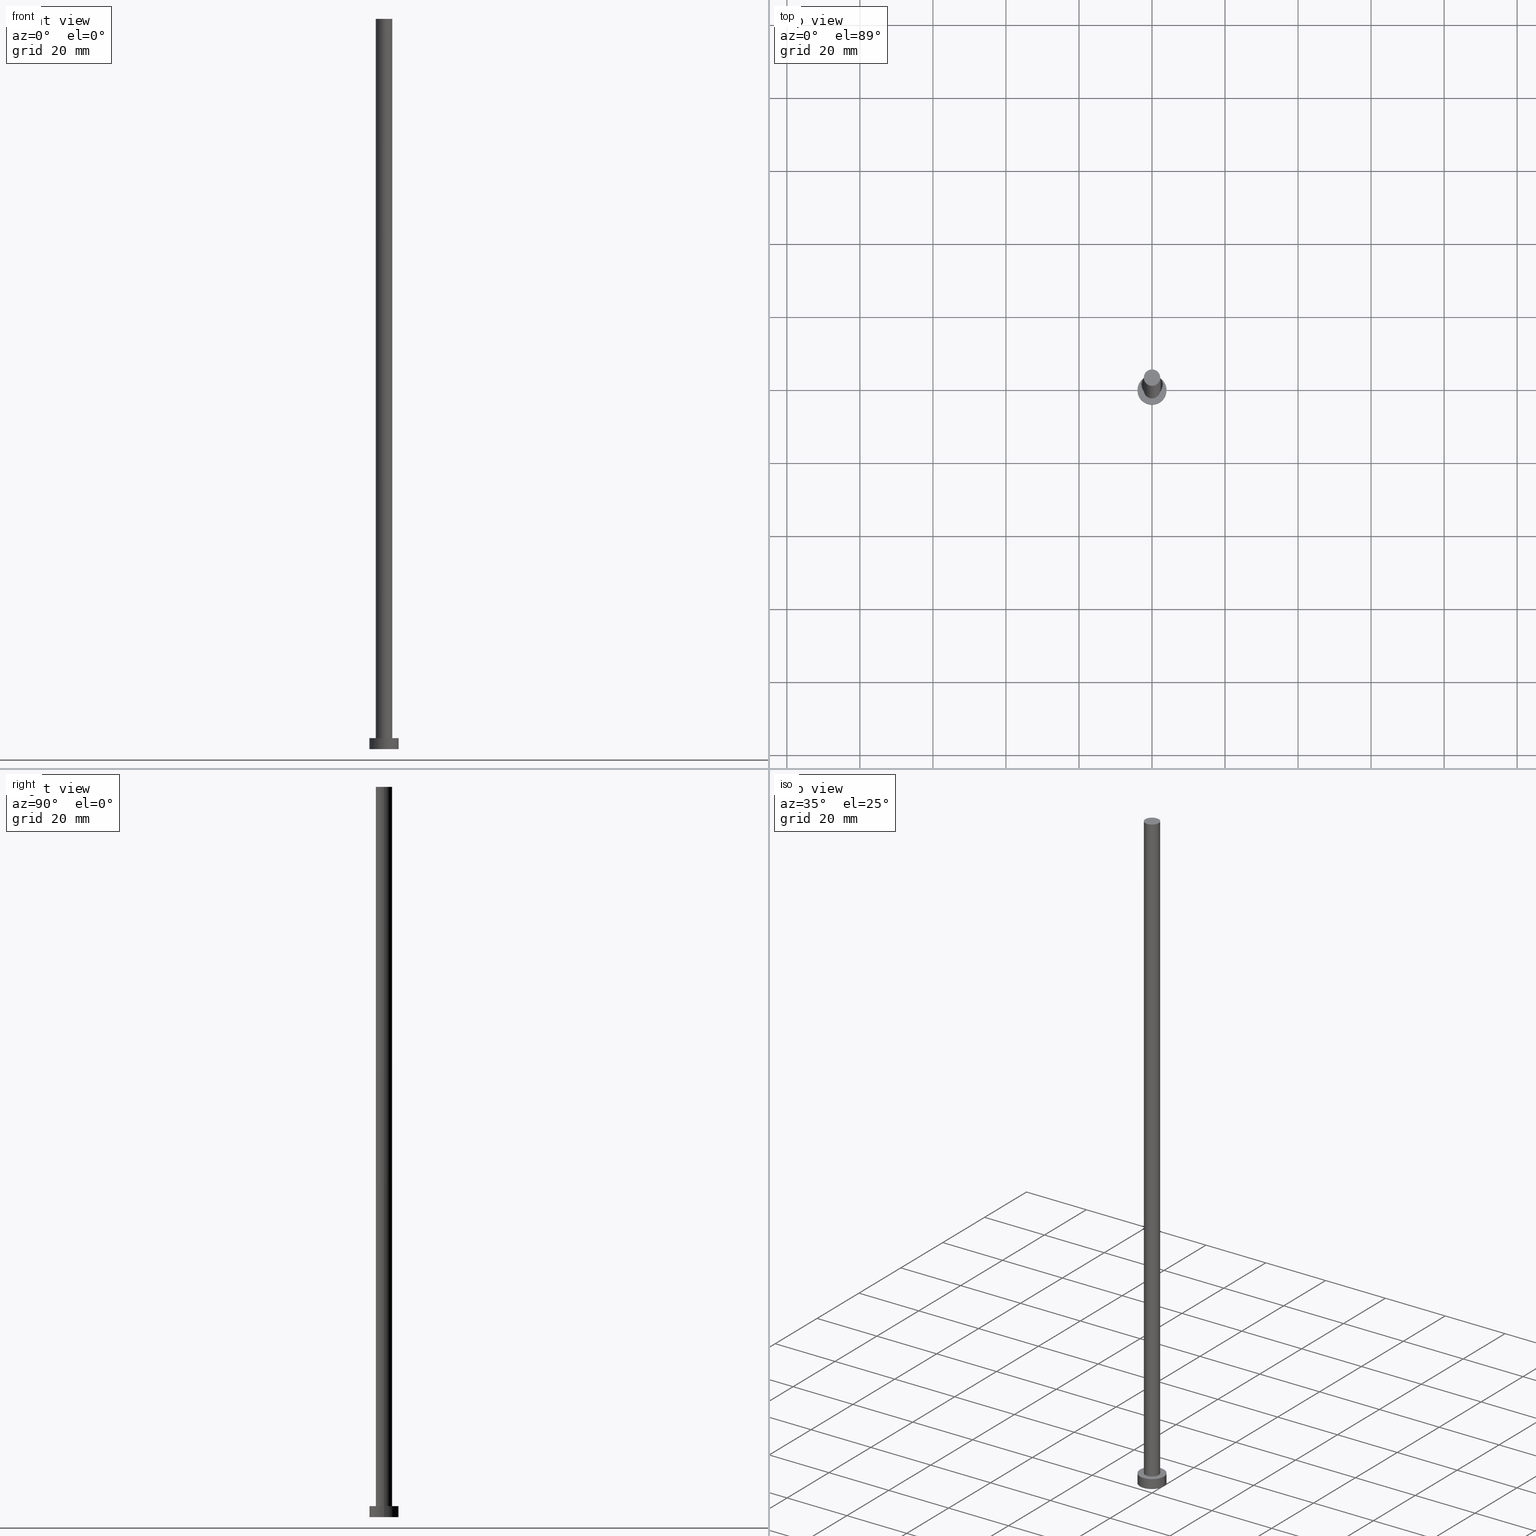
[diagram: canonical four-view strip — front | top / right | iso, engineering-drawing reading convention]
A machine part, canonical four-view strip (front | top / right | iso — engineering-drawing reading convention). The complete STEP part file that produces these views, byte-faithful:
ISO-10303-21;
HEADER;
FILE_DESCRIPTION (( 'STEP AP203' ),
    '1' );
FILE_NAME ('0418.STEP',
    '2023-02-13T15:04:25',
    ( '' ),
    ( '' ),
    'SwSTEP 2.0',
    'SolidWorks 2019',
    '' );
FILE_SCHEMA (( 'CONFIG_CONTROL_DESIGN' ));
ENDSEC;

DATA;
#1 = DIRECTION ( 'NONE',  ( 1.000000000000000000, 0.000000000000000000, 0.000000000000000000 ) ) ;
#2 = DIRECTION ( 'NONE',  ( -0.000000000000000000, -0.000000000000000000, -1.000000000000000000 ) ) ;
#3 = DIRECTION ( 'NONE',  ( -0.000000000000000000, -0.000000000000000000, -1.000000000000000000 ) ) ;
#4 = ORIENTED_EDGE ( 'NONE', *, *, #206, .F. ) ;
#5 = DIRECTION ( 'NONE',  ( 1.000000000000000000, 0.000000000000000000, 0.000000000000000000 ) ) ;
#6 = DIRECTION ( 'NONE',  ( -1.000000000000000000, 0.000000000000000000, 0.000000000000000000 ) ) ;
#7 = DIRECTION ( 'NONE',  ( -0.000000000000000000, -0.000000000000000000, -1.000000000000000000 ) ) ;
#8 = DIRECTION ( 'NONE',  ( 1.000000000000000000, 0.000000000000000000, 0.000000000000000000 ) ) ;
#9 = DIRECTION ( 'NONE',  ( -0.000000000000000000, -0.000000000000000000, -1.000000000000000000 ) ) ;
#10 = DIRECTION ( 'NONE',  ( 1.000000000000000000, 0.000000000000000000, 0.000000000000000000 ) ) ;
#11 = ORIENTED_EDGE ( 'NONE', *, *, #53, .F. ) ;
#12 = AXIS2_PLACEMENT_3D ( 'NONE', #104, #250, #204 ) ;
#13 = PERSON_AND_ORGANIZATION ( #96, #105 ) ;
#14 = EDGE_CURVE ( 'NONE', #249, #24, #155, .T. ) ;
#15 = VECTOR ( 'NONE', #2, 1000.000000000000000 ) ;
#16 = CIRCLE ( 'NONE', #52, 4.000000000000000000 ) ;
#17 = ORIENTED_EDGE ( 'NONE', *, *, #178, .T. ) ;
#18 = ORIENTED_EDGE ( 'NONE', *, *, #14, .F. ) ;
#19 = CARTESIAN_POINT ( 'NONE',  ( -2.250000000000000000, 0.000000000000000000, 200.0000000000000000 ) ) ;
#20 = APPROVAL ( #98, 'NEUR�EN�' ) ;
#21 = DIRECTION ( 'NONE',  ( 0.000000000000000000, 0.000000000000000000, 1.000000000000000000 ) ) ;
#22 = DIRECTION ( 'NONE',  ( -0.000000000000000000, -0.000000000000000000, -1.000000000000000000 ) ) ;
#23 = AXIS2_PLACEMENT_3D ( 'NONE', #222, #43, #126 ) ;
#24 = VERTEX_POINT ( 'NONE', #70 ) ;
#25 = ADVANCED_FACE ( 'NONE', ( #110, #201 ), #108, .T. ) ;
#26 = CIRCLE ( 'NONE', #187, 4.000000000000000000 ) ;
#27 = LOCAL_TIME ( 16, 4, 25.00000000000000000, #136 ) ;
#28 = APPLICATION_CONTEXT ( 'configuration controlled 3d designs of mechanical parts and assemblies' ) ;
#29 = MECHANICAL_CONTEXT ( 'NONE', #28, 'mechanical' ) ;
#30 = COORDINATED_UNIVERSAL_TIME_OFFSET ( 1, 0, .AHEAD. ) ;
#31 = EDGE_CURVE ( 'NONE', #77, #139, #210, .T. ) ;
#32 = ADVANCED_BREP_SHAPE_REPRESENTATION ( '0418', ( #168, #90 ), #228 ) ;
#33 = CALENDAR_DATE ( 2023, 13, 2 ) ;
#34 = EDGE_LOOP ( 'NONE', ( #158, #146 ) ) ;
#35 = ORIENTED_EDGE ( 'NONE', *, *, #65, .F. ) ;
#36 = PRODUCT ( '0418', '0418', '', ( #29 ) ) ;
#37 = AXIS2_PLACEMENT_3D ( 'NONE', #41, #86, #124 ) ;
#38 = CARTESIAN_POINT ( 'NONE',  ( -4.000000000000000000, 0.000000000000000000, 3.000000000000000000 ) ) ;
#39 = LINE ( 'NONE', #100, #138 ) ;
#40 = EDGE_LOOP ( 'NONE', ( #106, #156, #180, #137 ) ) ;
#41 = CARTESIAN_POINT ( 'NONE',  ( 0.000000000000000000, 0.000000000000000000, 200.0000000000000000 ) ) ;
#42 = CARTESIAN_POINT ( 'NONE',  ( -2.250000000000000000, 0.000000000000000000, 200.0000000000000000 ) ) ;
#43 = DIRECTION ( 'NONE',  ( 0.000000000000000000, 0.000000000000000000, 1.000000000000000000 ) ) ;
#44 = EDGE_LOOP ( 'NONE', ( #160, #58, #166, #35 ) ) ;
#45 = AXIS2_PLACEMENT_3D ( 'NONE', #194, #21, #142 ) ;
#46 = DIRECTION ( 'NONE',  ( 1.000000000000000000, 0.000000000000000000, 0.000000000000000000 ) ) ;
#47 = APPROVAL_DATE_TIME ( #49, #20 ) ;
#48 = DATE_AND_TIME ( #74, #122 ) ;
#49 = DATE_AND_TIME ( #169, #87 ) ;
#50 = PERSON_AND_ORGANIZATION ( #96, #105 ) ;
#51 = PERSON_AND_ORGANIZATION ( #96, #105 ) ;
#52 = AXIS2_PLACEMENT_3D ( 'NONE', #56, #115, #5 ) ;
#53 = EDGE_CURVE ( 'NONE', #242, #116, #252, .T. ) ;
#54 = PERSON_AND_ORGANIZATION ( #96, #105 ) ;
#55 = DATE_TIME_ROLE ( 'creation_date' ) ;
#56 = CARTESIAN_POINT ( 'NONE',  ( 0.000000000000000000, 0.000000000000000000, 0.000000000000000000 ) ) ;
#57 = ORIENTED_EDGE ( 'NONE', *, *, #53, .T. ) ;
#58 = ORIENTED_EDGE ( 'NONE', *, *, #181, .T. ) ;
#59 = AXIS2_PLACEMENT_3D ( 'NONE', #91, #248, #10 ) ;
#60 = ADVANCED_FACE ( 'NONE', ( #230 ), #205, .T. ) ;
#61 = ORIENTED_EDGE ( 'NONE', *, *, #31, .T. ) ;
#62 = DATE_TIME_ROLE ( 'classification_date' ) ;
#63 = DIRECTION ( 'NONE',  ( -0.000000000000000000, -0.000000000000000000, -1.000000000000000000 ) ) ;
#64 = VERTEX_POINT ( 'NONE', #177 ) ;
#65 = EDGE_CURVE ( 'NONE', #139, #24, #94, .T. ) ;
#66 = AXIS2_PLACEMENT_3D ( 'NONE', #82, #7, #159 ) ;
#67 = CARTESIAN_POINT ( 'NONE',  ( 0.000000000000000000, 0.000000000000000000, 200.0000000000000000 ) ) ;
#68 = DIRECTION ( 'NONE',  ( 1.000000000000000000, 0.000000000000000000, 0.000000000000000000 ) ) ;
#69 = CLOSED_SHELL ( 'NONE', ( #163, #114, #107, #25, #193, #198, #60 ) ) ;
#70 = CARTESIAN_POINT ( 'NONE',  ( -2.250000000000000000, 0.000000000000000000, 3.000000000000000000 ) ) ;
#71 = PERSON_AND_ORGANIZATION_ROLE ( 'design_supplier' ) ;
#72 = CC_DESIGN_PERSON_AND_ORGANIZATION_ASSIGNMENT ( #50, #111, ( #145 ) ) ;
#73 = CC_DESIGN_APPROVAL ( #144, ( #145 ) ) ;
#74 = CALENDAR_DATE ( 2023, 13, 2 ) ;
#75 = APPROVAL_STATUS ( 'not_yet_approved' ) ;
#76 = ORIENTED_EDGE ( 'NONE', *, *, #225, .F. ) ;
#77 = VERTEX_POINT ( 'NONE', #238 ) ;
#78 = DIRECTION ( 'NONE',  ( -1.000000000000000000, 0.000000000000000000, 0.000000000000000000 ) ) ;
#79 = ORIENTED_EDGE ( 'NONE', *, *, #83, .F. ) ;
#80 = AXIS2_PLACEMENT_3D ( 'NONE', #143, #63, #6 ) ;
#81 = CC_DESIGN_SECURITY_CLASSIFICATION ( #176, ( #145 ) ) ;
#82 = CARTESIAN_POINT ( 'NONE',  ( 0.000000000000000000, 0.000000000000000000, 200.0000000000000000 ) ) ;
#83 = EDGE_CURVE ( 'NONE', #64, #116, #216, .T. ) ;
#84 = CARTESIAN_POINT ( 'NONE',  ( 0.000000000000000000, 0.000000000000000000, 3.000000000000000000 ) ) ;
#85 = CARTESIAN_POINT ( 'NONE',  ( 0.000000000000000000, 0.000000000000000000, 3.000000000000000000 ) ) ;
#86 = DIRECTION ( 'NONE',  ( 0.000000000000000000, 0.000000000000000000, 1.000000000000000000 ) ) ;
#87 = LOCAL_TIME ( 16, 4, 25.00000000000000000, #148 ) ;
#88 = APPROVAL ( #75, 'NEUR�EN�' ) ;
#89 = ORIENTED_EDGE ( 'NONE', *, *, #173, .F. ) ;
#90 = AXIS2_PLACEMENT_3D ( 'NONE', #172, #135, #1 ) ;
#91 = CARTESIAN_POINT ( 'NONE',  ( 0.000000000000000000, 0.000000000000000000, 3.000000000000000000 ) ) ;
#92 = VECTOR ( 'NONE', #22, 1000.000000000000000 ) ;
#93 = CARTESIAN_POINT ( 'NONE',  ( 0.000000000000000000, 0.000000000000000000, 3.000000000000000000 ) ) ;
#94 = LINE ( 'NONE', #19, #15 ) ;
#95 =( NAMED_UNIT ( * ) PLANE_ANGLE_UNIT ( ) SI_UNIT ( $, .RADIAN. ) );
#96 = PERSON ( 'NEUR�EN�', 'NEUR�EN�', 'NEUR�EN�', ('NEUR�EN�'), ('NEUR�EN�'), ('NEUR�EN�') ) ;
#97 = FACE_OUTER_BOUND ( 'NONE', #191, .T. ) ;
#98 = APPROVAL_STATUS ( 'not_yet_approved' ) ;
#99 = CC_DESIGN_APPROVAL ( #20, ( #176 ) ) ;
#100 = CARTESIAN_POINT ( 'NONE',  ( 2.250000000000000000, 2.755455298081544285E-16, 200.0000000000000000 ) ) ;
#101 = PRODUCT_RELATED_PRODUCT_CATEGORY ( 'detail', '', ( #36 ) ) ;
#102 = PRODUCT_DEFINITION ( 'NEZN�M�', '', #145, #224 ) ;
#103 = AXIS2_PLACEMENT_3D ( 'NONE', #129, #165, #46 ) ;
#104 = CARTESIAN_POINT ( 'NONE',  ( 0.000000000000000000, 0.000000000000000000, 3.000000000000000000 ) ) ;
#105 = ORGANIZATION ( 'NEUR�EN�', 'NEUR�EN�', '' ) ;
#106 = ORIENTED_EDGE ( 'NONE', *, *, #170, .F. ) ;
#107 = ADVANCED_FACE ( 'NONE', ( #192 ), #179, .T. ) ;
#108 = PLANE ( 'NONE',  #12 ) ;
#109 = VECTOR ( 'NONE', #119, 1000.000000000000000 ) ;
#110 = FACE_BOUND ( 'NONE', #195, .T. ) ;
#111 = PERSON_AND_ORGANIZATION_ROLE ( 'creator' ) ;
#112 = PERSON_AND_ORGANIZATION ( #96, #105 ) ;
#113 = PERSON_AND_ORGANIZATION ( #96, #105 ) ;
#114 = ADVANCED_FACE ( 'NONE', ( #234 ), #154, .T. ) ;
#115 = DIRECTION ( 'NONE',  ( 0.000000000000000000, 0.000000000000000000, 1.000000000000000000 ) ) ;
#116 = VERTEX_POINT ( 'NONE', #120 ) ;
#117 = VERTEX_POINT ( 'NONE', #141 ) ;
#118 = EDGE_CURVE ( 'NONE', #64, #117, #26, .T. ) ;
#119 = DIRECTION ( 'NONE',  ( -0.000000000000000000, -0.000000000000000000, -1.000000000000000000 ) ) ;
#120 = CARTESIAN_POINT ( 'NONE',  ( -4.000000000000000000, 0.000000000000000000, 0.000000000000000000 ) ) ;
#121 = CYLINDRICAL_SURFACE ( 'NONE', #227, 2.250000000000000000 ) ;
#122 = LOCAL_TIME ( 16, 4, 25.00000000000000000, #30 ) ;
#123 = DIRECTION ( 'NONE',  ( 0.000000000000000000, 0.000000000000000000, 1.000000000000000000 ) ) ;
#124 = DIRECTION ( 'NONE',  ( 1.000000000000000000, 0.000000000000000000, 0.000000000000000000 ) ) ;
#125 = AXIS2_PLACEMENT_3D ( 'NONE', #93, #3, #78 ) ;
#126 = DIRECTION ( 'NONE',  ( 1.000000000000000000, 0.000000000000000000, -0.000000000000000000 ) ) ;
#127 = DIRECTION ( 'NONE',  ( 0.000000000000000000, 0.000000000000000000, 1.000000000000000000 ) ) ;
#128 = SHAPE_DEFINITION_REPRESENTATION ( #213, #32 ) ;
#129 = CARTESIAN_POINT ( 'NONE',  ( 0.000000000000000000, 0.000000000000000000, 200.0000000000000000 ) ) ;
#130 = SECURITY_CLASSIFICATION_LEVEL ( 'unclassified' ) ;
#131 = APPROVAL_ROLE ( '' ) ;
#132 = APPROVAL_ROLE ( '' ) ;
#133 = CC_DESIGN_PERSON_AND_ORGANIZATION_ASSIGNMENT ( #13, #233, ( #36 ) ) ;
#134 = PERSON_AND_ORGANIZATION_ROLE ( 'classification_officer' ) ;
#135 = DIRECTION ( 'NONE',  ( 0.000000000000000000, 0.000000000000000000, 1.000000000000000000 ) ) ;
#136 = COORDINATED_UNIVERSAL_TIME_OFFSET ( 1, 0, .AHEAD. ) ;
#137 = ORIENTED_EDGE ( 'NONE', *, *, #173, .T. ) ;
#138 = VECTOR ( 'NONE', #9, 1000.000000000000000 ) ;
#139 = VERTEX_POINT ( 'NONE', #42 ) ;
#140 = CYLINDRICAL_SURFACE ( 'NONE', #66, 2.250000000000000000 ) ;
#141 = CARTESIAN_POINT ( 'NONE',  ( 4.000000000000000000, 4.898587196589412829E-16, 3.000000000000000000 ) ) ;
#142 = DIRECTION ( 'NONE',  ( 1.000000000000000000, 0.000000000000000000, 0.000000000000000000 ) ) ;
#143 = CARTESIAN_POINT ( 'NONE',  ( 0.000000000000000000, 0.000000000000000000, 3.000000000000000000 ) ) ;
#144 = APPROVAL ( #255, 'NEUR�EN�' ) ;
#145 = PRODUCT_DEFINITION_FORMATION_WITH_SPECIFIED_SOURCE ( 'LIBOVOLN�', '', #36, .NOT_KNOWN. ) ;
#146 = ORIENTED_EDGE ( 'NONE', *, *, #206, .T. ) ;
#147 = PERSON_AND_ORGANIZATION ( #96, #105 ) ;
#148 = COORDINATED_UNIVERSAL_TIME_OFFSET ( 1, 0, .AHEAD. ) ;
#149 = UNCERTAINTY_MEASURE_WITH_UNIT (LENGTH_MEASURE( 1.000000000000000082E-05 ), #164, 'distance_accuracy_value', 'NONE');
#150 = COORDINATED_UNIVERSAL_TIME_OFFSET ( 1, 0, .AHEAD. ) ;
#151 = CC_DESIGN_DATE_AND_TIME_ASSIGNMENT ( #235, #55, ( #102 ) ) ;
#152 = CALENDAR_DATE ( 2023, 13, 2 ) ;
#153 = COORDINATED_UNIVERSAL_TIME_OFFSET ( 1, 0, .AHEAD. ) ;
#154 = CYLINDRICAL_SURFACE ( 'NONE', #80, 4.000000000000000000 ) ;
#155 = CIRCLE ( 'NONE', #59, 2.250000000000000000 ) ;
#156 = ORIENTED_EDGE ( 'NONE', *, *, #118, .F. ) ;
#157 = LOCAL_TIME ( 16, 4, 25.00000000000000000, #153 ) ;
#158 = ORIENTED_EDGE ( 'NONE', *, *, #118, .T. ) ;
#159 = DIRECTION ( 'NONE',  ( -1.000000000000000000, 0.000000000000000000, 0.000000000000000000 ) ) ;
#160 = ORIENTED_EDGE ( 'NONE', *, *, #31, .F. ) ;
#161 = DIRECTION ( 'NONE',  ( -1.000000000000000000, 0.000000000000000000, 0.000000000000000000 ) ) ;
#162 = DIRECTION ( 'NONE',  ( 0.000000000000000000, 0.000000000000000000, 1.000000000000000000 ) ) ;
#163 = ADVANCED_FACE ( 'NONE', ( #220 ), #121, .T. ) ;
#164 =( LENGTH_UNIT ( ) NAMED_UNIT ( * ) SI_UNIT ( .MILLI., .METRE. ) );
#165 = DIRECTION ( 'NONE',  ( 0.000000000000000000, 0.000000000000000000, 1.000000000000000000 ) ) ;
#166 = ORIENTED_EDGE ( 'NONE', *, *, #14, .T. ) ;
#167 = APPLICATION_CONTEXT ( 'configuration controlled 3d designs of mechanical parts and assemblies' ) ;
#168 = MANIFOLD_SOLID_BREP ( 'P�idat vysunut�m3', #69 ) ;
#169 = CALENDAR_DATE ( 2023, 13, 2 ) ;
#170 = EDGE_CURVE ( 'NONE', #117, #242, #246, .T. ) ;
#171 = CC_DESIGN_DATE_AND_TIME_ASSIGNMENT ( #48, #62, ( #176 ) ) ;
#172 = CARTESIAN_POINT ( 'NONE',  ( 0.000000000000000000, 0.000000000000000000, 0.000000000000000000 ) ) ;
#173 = EDGE_CURVE ( 'NONE', #116, #242, #16, .T. ) ;
#174 = CC_DESIGN_APPROVAL ( #88, ( #102 ) ) ;
#175 = EDGE_LOOP ( 'NONE', ( #4, #244, #57, #79 ) ) ;
#176 = SECURITY_CLASSIFICATION ( '', '', #130 ) ;
#177 = CARTESIAN_POINT ( 'NONE',  ( -4.000000000000000000, 0.000000000000000000, 3.000000000000000000 ) ) ;
#178 = EDGE_CURVE ( 'NONE', #24, #249, #212, .T. ) ;
#179 = CYLINDRICAL_SURFACE ( 'NONE', #125, 4.000000000000000000 ) ;
#180 = ORIENTED_EDGE ( 'NONE', *, *, #83, .T. ) ;
#181 = EDGE_CURVE ( 'NONE', #77, #249, #39, .T. ) ;
#182 = FACE_OUTER_BOUND ( 'NONE', #237, .T. ) ;
#183 = CIRCLE ( 'NONE', #197, 4.000000000000000000 ) ;
#184 = PERSON_AND_ORGANIZATION ( #96, #105 ) ;
#185 = ORIENTED_EDGE ( 'NONE', *, *, #181, .F. ) ;
#186 = ORIENTED_EDGE ( 'NONE', *, *, #178, .F. ) ;
#187 = AXIS2_PLACEMENT_3D ( 'NONE', #84, #123, #8 ) ;
#188 = CARTESIAN_POINT ( 'NONE',  ( 0.000000000000000000, 0.000000000000000000, 0.000000000000000000 ) ) ;
#189 = AXIS2_PLACEMENT_3D ( 'NONE', #245, #219, #247 ) ;
#190 = ORIENTED_EDGE ( 'NONE', *, *, #225, .T. ) ;
#191 = EDGE_LOOP ( 'NONE', ( #89, #11 ) ) ;
#192 = FACE_OUTER_BOUND ( 'NONE', #40, .T. ) ;
#193 = ADVANCED_FACE ( 'NONE', ( #97 ), #218, .F. ) ;
#194 = CARTESIAN_POINT ( 'NONE',  ( 0.000000000000000000, 0.000000000000000000, 3.000000000000000000 ) ) ;
#195 = EDGE_LOOP ( 'NONE', ( #186, #18 ) ) ;
#196 = DIRECTION ( 'NONE',  ( -0.000000000000000000, -0.000000000000000000, -1.000000000000000000 ) ) ;
#197 = AXIS2_PLACEMENT_3D ( 'NONE', #85, #162, #221 ) ;
#198 = ADVANCED_FACE ( 'NONE', ( #182 ), #140, .T. ) ;
#199 = CARTESIAN_POINT ( 'NONE',  ( 4.000000000000000000, 4.898587196589412829E-16, 3.000000000000000000 ) ) ;
#200 = CARTESIAN_POINT ( 'NONE',  ( 4.000000000000000000, 4.898587196589412829E-16, 0.000000000000000000 ) ) ;
#201 = FACE_OUTER_BOUND ( 'NONE', #34, .T. ) ;
#202 = CC_DESIGN_PERSON_AND_ORGANIZATION_ASSIGNMENT ( #54, #134, ( #176 ) ) ;
#203 = APPROVAL_PERSON_ORGANIZATION ( #147, #144, #132 ) ;
#204 = DIRECTION ( 'NONE',  ( 1.000000000000000000, 0.000000000000000000, -0.000000000000000000 ) ) ;
#205 = PLANE ( 'NONE',  #23 ) ;
#206 = EDGE_CURVE ( 'NONE', #117, #64, #183, .T. ) ;
#207 = DATE_AND_TIME ( #208, #27 ) ;
#208 = CALENDAR_DATE ( 2023, 13, 2 ) ;
#209 = CC_DESIGN_PERSON_AND_ORGANIZATION_ASSIGNMENT ( #112, #254, ( #102 ) ) ;
#210 = CIRCLE ( 'NONE', #103, 2.250000000000000000 ) ;
#211 = APPROVAL_DATE_TIME ( #207, #88 ) ;
#212 = CIRCLE ( 'NONE', #45, 2.250000000000000000 ) ;
#213 = PRODUCT_DEFINITION_SHAPE ( 'NONE', 'NONE',  #102 ) ;
#214 = CC_DESIGN_PERSON_AND_ORGANIZATION_ASSIGNMENT ( #113, #71, ( #145 ) ) ;
#215 = APPROVAL_PERSON_ORGANIZATION ( #184, #20, #223 ) ;
#216 = LINE ( 'NONE', #38, #109 ) ;
#217 = ORIENTED_EDGE ( 'NONE', *, *, #65, .T. ) ;
#218 = PLANE ( 'NONE',  #189 ) ;
#219 = DIRECTION ( 'NONE',  ( 0.000000000000000000, 0.000000000000000000, 1.000000000000000000 ) ) ;
#220 = FACE_OUTER_BOUND ( 'NONE', #44, .T. ) ;
#221 = DIRECTION ( 'NONE',  ( 1.000000000000000000, 0.000000000000000000, 0.000000000000000000 ) ) ;
#222 = CARTESIAN_POINT ( 'NONE',  ( 0.000000000000000000, 0.000000000000000000, 200.0000000000000000 ) ) ;
#223 = APPROVAL_ROLE ( '' ) ;
#224 = DESIGN_CONTEXT ( 'detailed design', #167, 'design' ) ;
#225 = EDGE_CURVE ( 'NONE', #139, #77, #253, .T. ) ;
#226 = EDGE_LOOP ( 'NONE', ( #190, #61 ) ) ;
#227 = AXIS2_PLACEMENT_3D ( 'NONE', #67, #196, #161 ) ;
#228 =( GEOMETRIC_REPRESENTATION_CONTEXT ( 3 ) GLOBAL_UNCERTAINTY_ASSIGNED_CONTEXT ( ( #149 ) ) GLOBAL_UNIT_ASSIGNED_CONTEXT ( ( #164, #95, #239 ) ) REPRESENTATION_CONTEXT ( 'NONE', 'WORKASPACE' ) );
#229 = DATE_AND_TIME ( #33, #241 ) ;
#230 = FACE_OUTER_BOUND ( 'NONE', #226, .T. ) ;
#231 = APPROVAL_DATE_TIME ( #229, #144 ) ;
#232 = APPLICATION_PROTOCOL_DEFINITION ( 'international standard', 'config_control_design', 1994, #167 ) ;
#233 = PERSON_AND_ORGANIZATION_ROLE ( 'design_owner' ) ;
#234 = FACE_OUTER_BOUND ( 'NONE', #175, .T. ) ;
#235 = DATE_AND_TIME ( #152, #157 ) ;
#236 = APPROVAL_PERSON_ORGANIZATION ( #51, #88, #131 ) ;
#237 = EDGE_LOOP ( 'NONE', ( #185, #76, #217, #17 ) ) ;
#238 = CARTESIAN_POINT ( 'NONE',  ( 2.250000000000000000, 2.755455298081544285E-16, 200.0000000000000000 ) ) ;
#239 =( NAMED_UNIT ( * ) SI_UNIT ( $, .STERADIAN. ) SOLID_ANGLE_UNIT ( ) );
#240 = AXIS2_PLACEMENT_3D ( 'NONE', #188, #127, #68 ) ;
#241 = LOCAL_TIME ( 16, 4, 25.00000000000000000, #150 ) ;
#242 = VERTEX_POINT ( 'NONE', #200 ) ;
#243 = CARTESIAN_POINT ( 'NONE',  ( 2.250000000000000000, 2.755455298081544285E-16, 3.000000000000000000 ) ) ;
#244 = ORIENTED_EDGE ( 'NONE', *, *, #170, .T. ) ;
#245 = CARTESIAN_POINT ( 'NONE',  ( 0.000000000000000000, 0.000000000000000000, 0.000000000000000000 ) ) ;
#246 = LINE ( 'NONE', #199, #92 ) ;
#247 = DIRECTION ( 'NONE',  ( 1.000000000000000000, 0.000000000000000000, -0.000000000000000000 ) ) ;
#248 = DIRECTION ( 'NONE',  ( 0.000000000000000000, 0.000000000000000000, 1.000000000000000000 ) ) ;
#249 = VERTEX_POINT ( 'NONE', #243 ) ;
#250 = DIRECTION ( 'NONE',  ( 0.000000000000000000, 0.000000000000000000, 1.000000000000000000 ) ) ;
#251 = APPLICATION_PROTOCOL_DEFINITION ( 'international standard', 'config_control_design', 1994, #28 ) ;
#252 = CIRCLE ( 'NONE', #240, 4.000000000000000000 ) ;
#253 = CIRCLE ( 'NONE', #37, 2.250000000000000000 ) ;
#254 = PERSON_AND_ORGANIZATION_ROLE ( 'creator' ) ;
#255 = APPROVAL_STATUS ( 'not_yet_approved' ) ;
ENDSEC;
END-ISO-10303-21;
